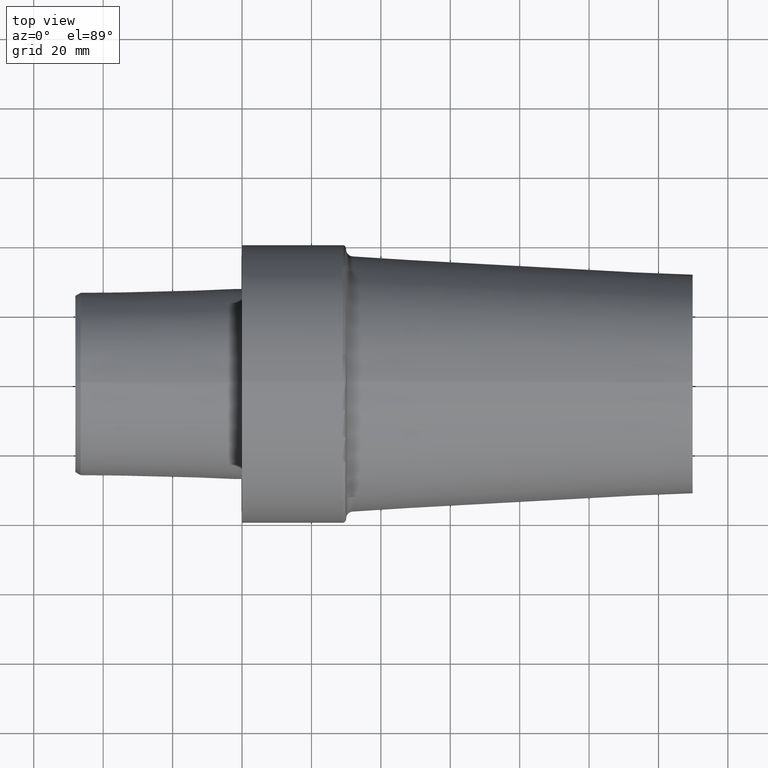
[diagram: clean part render]
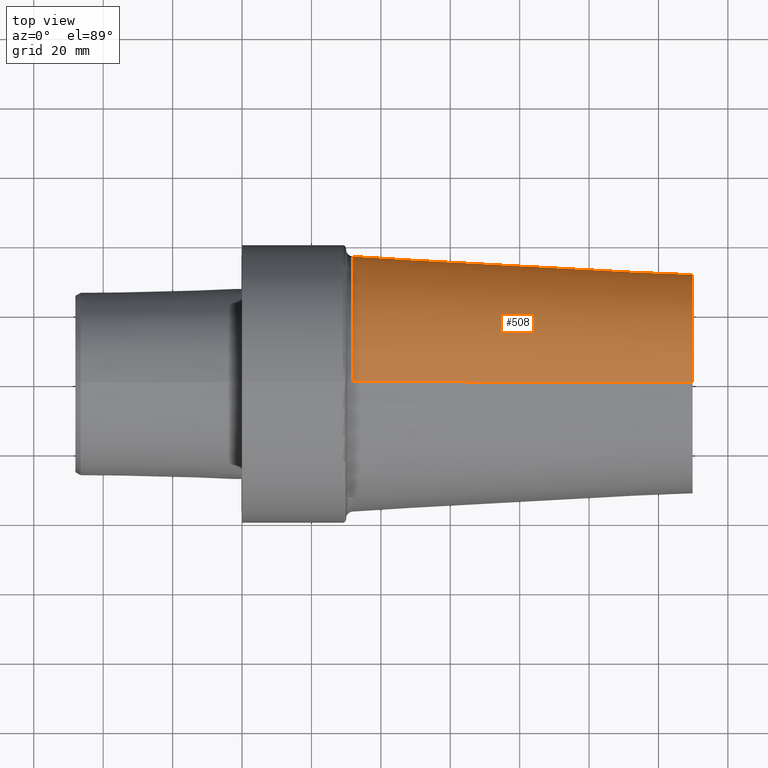
[diagram: same view with one face highlighted and labeled with its STEP entity id]
A machine part, top view. The second image highlights one B-rep face of the part: STEP entity #508.
In plain terms, the highlighted conical surface has half-angle 3.154 deg.
Its self-contained STEP definition (entity closure, byte-faithful):
#2 = CARTESIAN_POINT ( 'NONE',  ( 31.88996590016365218, 0.000000000000000000, 0.000000000000000000 ) ) ;
#10 = DIRECTION ( 'NONE',  ( -0.9984854159579920063, 0.000000000000000000, 0.05501703480918899991 ) ) ;
#109 = FACE_OUTER_BOUND ( 'NONE', #333, .T. ) ;
#120 = DIRECTION ( 'NONE',  ( -1.000000000000000000, 0.000000000000000000, 0.000000000000000000 ) ) ;
#128 = CARTESIAN_POINT ( 'NONE',  ( 31.88996590016365218, 0.000000000000000000, 36.89586191702791496 ) ) ;
#134 = CIRCLE ( 'NONE', #246, 36.89586191702791496 ) ;
#135 = VERTEX_POINT ( 'NONE', #400 ) ;
#169 = VERTEX_POINT ( 'NONE', #288 ) ;
#190 = VECTOR ( 'NONE', #10, 1000.000000000000227 ) ;
#220 = CARTESIAN_POINT ( 'NONE',  ( 129.8176255202773746, 0.000000000000000000, 0.000000000000000000 ) ) ;
#227 = VERTEX_POINT ( 'NONE', #128 ) ;
#233 = ORIENTED_EDGE ( 'NONE', *, *, #356, .F. ) ;
#235 = EDGE_CURVE ( 'NONE', #312, #135, #503, .T. ) ;
#238 = AXIS2_PLACEMENT_3D ( 'NONE', #220, #120, #301 ) ;
#246 = AXIS2_PLACEMENT_3D ( 'NONE', #2, #270, #431 ) ;
#248 = ORIENTED_EDGE ( 'NONE', *, *, #488, .T. ) ;
#268 = AXIS2_PLACEMENT_3D ( 'NONE', #326, #474, #279 ) ;
#270 = DIRECTION ( 'NONE',  ( -1.000000000000000000, 0.000000000000000000, 0.000000000000000000 ) ) ;
#279 = DIRECTION ( 'NONE',  ( 0.000000000000000000, 0.000000000000000000, 1.000000000000000000 ) ) ;
#288 = CARTESIAN_POINT ( 'NONE',  ( 31.88996590016365218, 4.518439919847096007E-15, -36.89586191702791496 ) ) ;
#301 = DIRECTION ( 'NONE',  ( 0.000000000000000000, 0.000000000000000000, 1.000000000000000000 ) ) ;
#310 = EDGE_CURVE ( 'NONE', #227, #169, #134, .T. ) ;
#312 = VERTEX_POINT ( 'NONE', #470 ) ;
#324 = CARTESIAN_POINT ( 'NONE',  ( 129.8176255202773746, 3.857637413950260996E-15, -31.49999997253168615 ) ) ;
#326 = CARTESIAN_POINT ( 'NONE',  ( 129.8176255202773746, 0.000000000000000000, 0.000000000000000000 ) ) ;
#328 = ORIENTED_EDGE ( 'NONE', *, *, #235, .T. ) ;
#333 = EDGE_LOOP ( 'NONE', ( #328, #248, #423, #233 ) ) ;
#356 = EDGE_CURVE ( 'NONE', #312, #227, #465, .T. ) ;
#397 = LINE ( 'NONE', #324, #454 ) ;
#399 = DIRECTION ( 'NONE',  ( -0.9984854159579920063, 6.737643557765180859E-18, -0.05501703480918899991 ) ) ;
#400 = CARTESIAN_POINT ( 'NONE',  ( 129.8176255202773746, 4.188038666898672585E-15, -31.49999997253168615 ) ) ;
#423 = ORIENTED_EDGE ( 'NONE', *, *, #310, .F. ) ;
#431 = DIRECTION ( 'NONE',  ( 0.000000000000000000, 0.000000000000000000, 1.000000000000000000 ) ) ;
#454 = VECTOR ( 'NONE', #399, 1000.000000000000227 ) ;
#465 = LINE ( 'NONE', #514, #190 ) ;
#470 = CARTESIAN_POINT ( 'NONE',  ( 129.8176255202773746, 0.000000000000000000, 31.49999997253168615 ) ) ;
#474 = DIRECTION ( 'NONE',  ( -1.000000000000000000, 0.000000000000000000, 0.000000000000000000 ) ) ;
#488 = EDGE_CURVE ( 'NONE', #135, #169, #397, .T. ) ;
#503 = CIRCLE ( 'NONE', #238, 31.49999997253168615 ) ;
#508 = ADVANCED_FACE ( 'NONE', ( #109 ), #518, .T. ) ;
#514 = CARTESIAN_POINT ( 'NONE',  ( 129.8176255202773746, 0.000000000000000000, 31.49999997253168615 ) ) ;
#518 = CONICAL_SURFACE ( 'NONE', #268, 31.49999997253168615, 0.05504482762205797908 ) ;